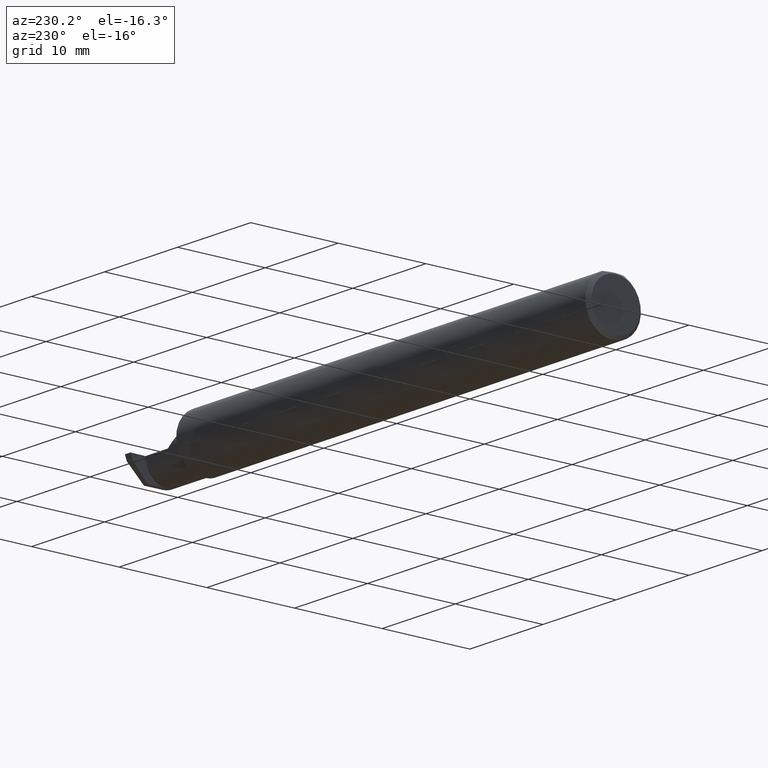
[diagram: clean part render]
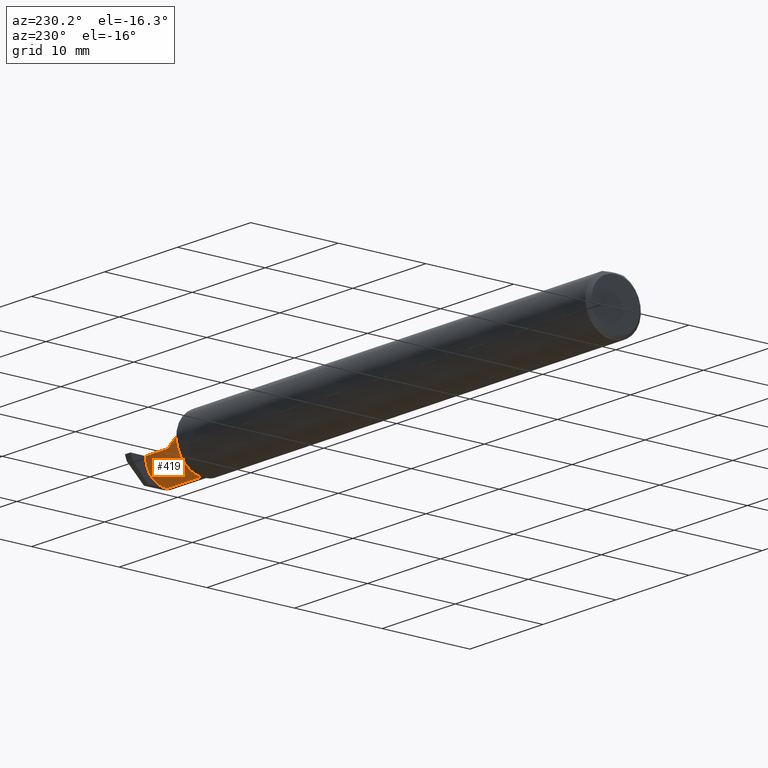
[diagram: same view with one face highlighted and labeled with its STEP entity id]
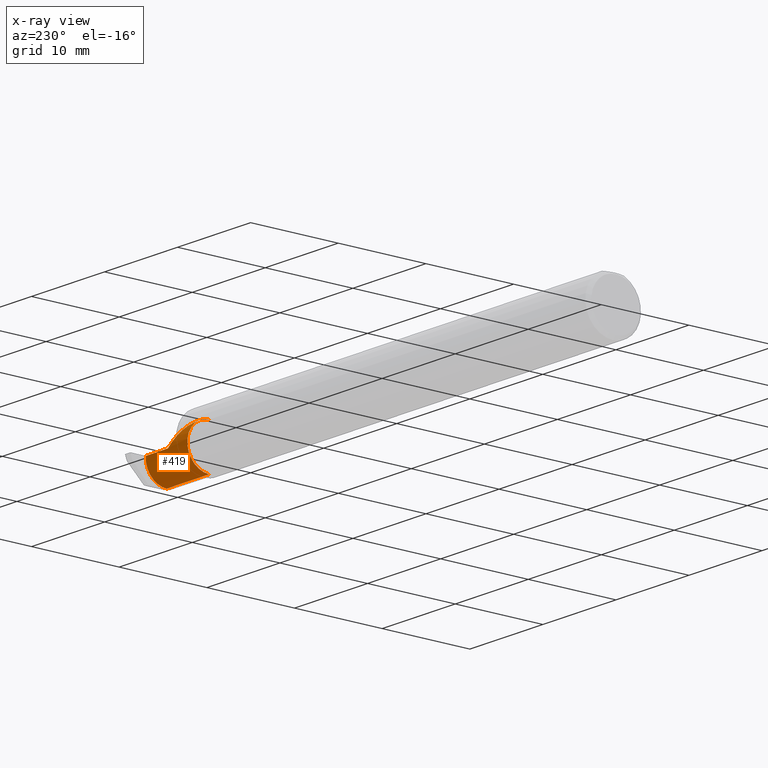
[diagram: x-ray of the same camera — body ghosted, the highlighted face saturated]
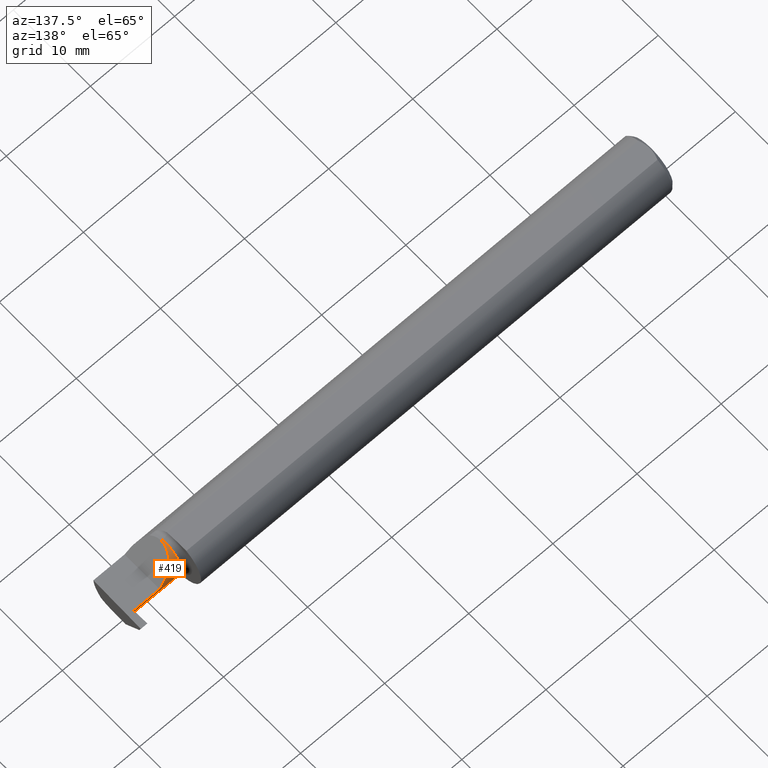
[diagram: same view with one face highlighted and labeled with its STEP entity id]
A machine part, auxiliary view. The second image highlights one B-rep face of the part: STEP entity #419.
The next image is the same camera in x-ray: the body ghosted, the highlighted face saturated — about 0% of this face is hidden behind the body in this view.
A second angle (auxiliary view) of the same face is appended — the face is thin or edge-on in the first view.
In plain terms, the highlighted cylindrical surface (edge-blend (fillet) strip) has radius 2.4892 mm, axis along (-1, -0, -0).
Its self-contained STEP definition (entity closure, byte-faithful):
#2 = CARTESIAN_POINT ( 'NONE',  ( 2.470482208140545755, 0.05115612325138190614, -0.02403823089877875005 ) ) ;
#3 = VERTEX_POINT ( 'NONE', #682 ) ;
#24 = CIRCLE ( 'NONE', #237, 0.09800000000000000377 ) ;
#29 = CARTESIAN_POINT ( 'NONE',  ( 2.470482208140545755, 0.05115612325138190614, -0.02403823089877875005 ) ) ;
#32 = CARTESIAN_POINT ( 'NONE',  ( 2.245000000000000107, -0.04385000000000001397, 0.000000000000000000 ) ) ;
#36 = DIRECTION ( 'NONE',  ( 1.000000000000000000, 0.000000000000000000, 0.000000000000000000 ) ) ;
#54 = AXIS2_PLACEMENT_3D ( 'NONE', #71, #685, #320 ) ;
#63 = VECTOR ( 'NONE', #347, 39.37007874015748143 ) ;
#66 = CARTESIAN_POINT ( 'NONE',  ( 2.252000000000000668, -0.04385000000000001397, 0.09800000000000000377 ) ) ;
#69 = DIRECTION ( 'NONE',  ( -1.000000000000000000, -0.000000000000000000, -0.000000000000000000 ) ) ;
#71 = CARTESIAN_POINT ( 'NONE',  ( 2.220000000000000195, -0.04385000000000001397, 0.000000000000000000 ) ) ;
#76 = AXIS2_PLACEMENT_3D ( 'NONE', #32, #285, #522 ) ;
#82 =( BOUNDED_CURVE ( )  B_SPLINE_CURVE ( 3, ( #29, #460, #87, #158 ),
 .UNSPECIFIED., .F., .F. ) 
 B_SPLINE_CURVE_WITH_KNOTS ( ( 4, 4 ),
 ( 4.463962699426422986, 4.711356644242684411 ),
 .UNSPECIFIED. ) 
 CURVE ( )  GEOMETRIC_REPRESENTATION_ITEM ( )  RATIONAL_B_SPLINE_CURVE ( ( 1.000000000000000000, 0.9949061863228998437, 0.9949061863228998437, 1.000000000000000000 ) ) 
 REPRESENTATION_ITEM ( '' )  );
#87 = CARTESIAN_POINT ( 'NONE',  ( 2.469831655309489893, 0.05414656493488105571, -0.008143655253979765682 ) ) ;
#92 = CARTESIAN_POINT ( 'NONE',  ( 2.220000000000000195, 0.05414999999999998981, 3.429011037612586318E-17 ) ) ;
#99 = ORIENTED_EDGE ( 'NONE', *, *, #500, .T. ) ;
#110 =( BOUNDED_CURVE ( )  B_SPLINE_CURVE ( 3, ( #147, #506, #683, #401 ),
 .UNSPECIFIED., .F., .T. ) 
 B_SPLINE_CURVE_WITH_KNOTS ( ( 4, 4 ),
 ( 0.000000000000000000, 1.570796326794896558 ),
 .UNSPECIFIED. ) 
 CURVE ( )  GEOMETRIC_REPRESENTATION_ITEM ( )  RATIONAL_B_SPLINE_CURVE ( ( 1.000000000000000000, 0.8047378541243649375, 0.8047378541243649375, 1.000000000000000000 ) ) 
 REPRESENTATION_ITEM ( '' )  );
#123 = VERTEX_POINT ( 'NONE', #710 ) ;
#147 = CARTESIAN_POINT ( 'NONE',  ( 2.252000000000000668, -0.04385000000000001397, 0.09800000000000000377 ) ) ;
#158 = CARTESIAN_POINT ( 'NONE',  ( 2.469500000000000028, 0.05414999123725637575, -4.144270477499208333E-05 ) ) ;
#167 = CARTESIAN_POINT ( 'NONE',  ( 2.470482208140545755, 0.05115612325138190614, -0.02403823089877875005 ) ) ;
#178 = DIRECTION ( 'NONE',  ( -1.000000000000000000, -0.000000000000000000, -0.000000000000000000 ) ) ;
#199 = ORIENTED_EDGE ( 'NONE', *, *, #491, .F. ) ;
#230 = CARTESIAN_POINT ( 'NONE',  ( 2.472853341463134402, 0.03970102213383024797, -0.06931214282740405519 ) ) ;
#232 = VERTEX_POINT ( 'NONE', #2 ) ;
#237 = AXIS2_PLACEMENT_3D ( 'NONE', #374, #178, #737 ) ;
#242 = ORIENTED_EDGE ( 'NONE', *, *, #307, .T. ) ;
#245 = VERTEX_POINT ( 'NONE', #362 ) ;
#249 =( BOUNDED_CURVE ( )  B_SPLINE_CURVE ( 3, ( #772, #708, #230, #167 ),
 .UNSPECIFIED., .F., .F. ) 
 B_SPLINE_CURVE_WITH_KNOTS ( ( 4, 4 ),
 ( 3.140983202202990654, 4.463962699426419434 ),
 .UNSPECIFIED. ) 
 CURVE ( )  GEOMETRIC_REPRESENTATION_ITEM ( )  RATIONAL_B_SPLINE_CURVE ( ( 1.000000000000000000, 0.8593853101475608103, 0.8593853101475608103, 1.000000000000000000 ) ) 
 REPRESENTATION_ITEM ( '' )  );
#285 = DIRECTION ( 'NONE',  ( -1.000000000000000000, -0.000000000000000000, -0.000000000000000000 ) ) ;
#298 = VERTEX_POINT ( 'NONE', #489 ) ;
#307 = EDGE_CURVE ( 'NONE', #123, #298, #24, .T. ) ;
#314 = ORIENTED_EDGE ( 'NONE', *, *, #555, .F. ) ;
#320 = DIRECTION ( 'NONE',  ( 0.000000000000000000, 0.000000000000000000, 1.000000000000000000 ) ) ;
#327 = EDGE_LOOP ( 'NONE', ( #615, #99, #314, #525, #775, #502, #242, #199 ) ) ;
#347 = DIRECTION ( 'NONE',  ( -1.000000000000000000, -0.000000000000000000, -0.000000000000000000 ) ) ;
#362 = CARTESIAN_POINT ( 'NONE',  ( 2.245000000000000107, -0.04385000000000001397, 0.09800000000000001765 ) ) ;
#365 = VERTEX_POINT ( 'NONE', #66 ) ;
#368 = VERTEX_POINT ( 'NONE', #497 ) ;
#374 = CARTESIAN_POINT ( 'NONE',  ( 2.469500000000000028, -0.04385000000000001397, 0.000000000000000000 ) ) ;
#399 = LINE ( 'NONE', #92, #434 ) ;
#401 = CARTESIAN_POINT ( 'NONE',  ( 2.350000000000000089, 0.05414999999999988572, 1.836970198721028825E-17 ) ) ;
#419 = ADVANCED_FACE ( 'NONE', ( #510 ), #617, .T. ) ;
#434 = VECTOR ( 'NONE', #36, 39.37007874015748143 ) ;
#447 = CIRCLE ( 'NONE', #76, 0.09800000000000000377 ) ;
#449 = EDGE_CURVE ( 'NONE', #368, #232, #249, .T. ) ;
#460 = CARTESIAN_POINT ( 'NONE',  ( 2.470160734290016702, 0.05314349951121605242, -0.01618353831829640391 ) ) ;
#489 = CARTESIAN_POINT ( 'NONE',  ( 2.469500000000000028, 0.05414999123725637575, -4.144270477499208333E-05 ) ) ;
#491 = EDGE_CURVE ( 'NONE', #232, #298, #82, .T. ) ;
#497 = CARTESIAN_POINT ( 'NONE',  ( 2.474353376795600745, -0.04385000000000004172, -0.09799999999999998990 ) ) ;
#500 = EDGE_CURVE ( 'NONE', #368, #637, #587, .T. ) ;
#502 = ORIENTED_EDGE ( 'NONE', *, *, #532, .T. ) ;
#506 = CARTESIAN_POINT ( 'NONE',  ( 2.252000000000000668, 0.01355707088743670317, 0.09799999999999996214 ) ) ;
#510 = FACE_OUTER_BOUND ( 'NONE', #327, .T. ) ;
#522 = DIRECTION ( 'NONE',  ( 0.000000000000000000, 0.000000000000000000, 1.000000000000000000 ) ) ;
#525 = ORIENTED_EDGE ( 'NONE', *, *, #613, .F. ) ;
#532 = EDGE_CURVE ( 'NONE', #3, #123, #399, .T. ) ;
#546 = LINE ( 'NONE', #672, #623 ) ;
#555 = EDGE_CURVE ( 'NONE', #245, #637, #447, .T. ) ;
#587 = LINE ( 'NONE', #769, #63 ) ;
#613 = EDGE_CURVE ( 'NONE', #365, #245, #546, .T. ) ;
#615 = ORIENTED_EDGE ( 'NONE', *, *, #449, .F. ) ;
#617 = CYLINDRICAL_SURFACE ( 'NONE', #54, 0.09800000000000000377 ) ;
#623 = VECTOR ( 'NONE', #69, 39.37007874015748143 ) ;
#637 = VERTEX_POINT ( 'NONE', #744 ) ;
#672 = CARTESIAN_POINT ( 'NONE',  ( 2.220000000000000195, -0.04385000000000001397, 0.09800000000000000377 ) ) ;
#682 = CARTESIAN_POINT ( 'NONE',  ( 2.350000000000000089, 0.05414999999999988572, 1.836970198721028825E-17 ) ) ;
#683 = CARTESIAN_POINT ( 'NONE',  ( 2.292592929112563738, 0.05415000000000004532, 0.05740707088743669112 ) ) ;
#685 = DIRECTION ( 'NONE',  ( -1.000000000000000000, -0.000000000000000000, -0.000000000000000000 ) ) ;
#708 = CARTESIAN_POINT ( 'NONE',  ( 2.474354867654528167, 0.002850604310161191507, -0.09800000000000000377 ) ) ;
#710 = CARTESIAN_POINT ( 'NONE',  ( 2.469500000000000028, 0.05414999999999999675, 3.428995993117051746E-17 ) ) ;
#737 = DIRECTION ( 'NONE',  ( 0.000000000000000000, 0.000000000000000000, 1.000000000000000000 ) ) ;
#744 = CARTESIAN_POINT ( 'NONE',  ( 2.245000000000000107, -0.04385000000000000009, -0.09800000000000001765 ) ) ;
#769 = CARTESIAN_POINT ( 'NONE',  ( 2.220000000000000195, -0.04385000000000000703, -0.09800000000000000377 ) ) ;
#772 = CARTESIAN_POINT ( 'NONE',  ( 2.474353376795600745, -0.04385000000000004172, -0.09799999999999998990 ) ) ;
#775 = ORIENTED_EDGE ( 'NONE', *, *, #781, .T. ) ;
#781 = EDGE_CURVE ( 'NONE', #365, #3, #110, .T. ) ;